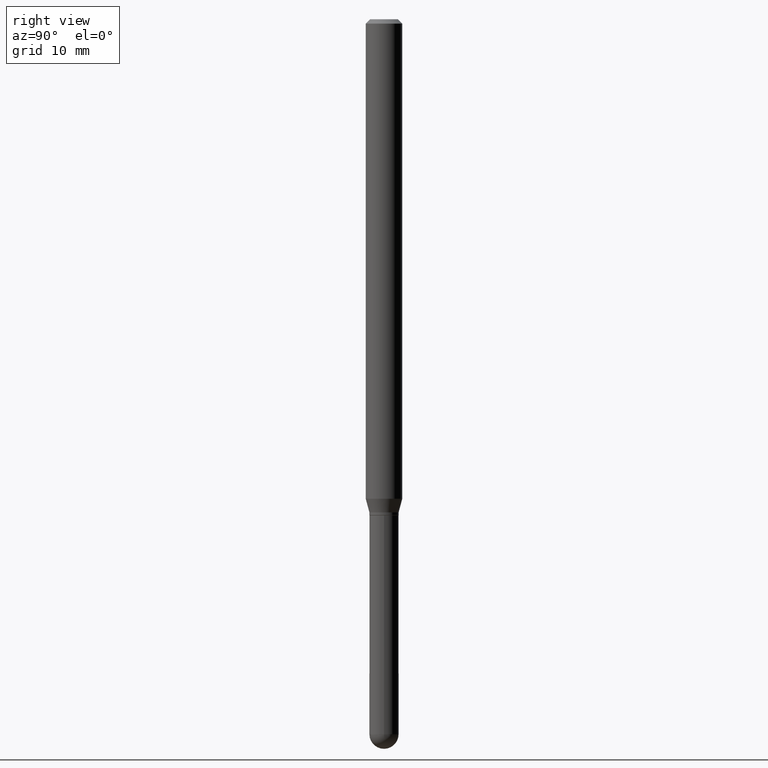
[diagram: clean part render]
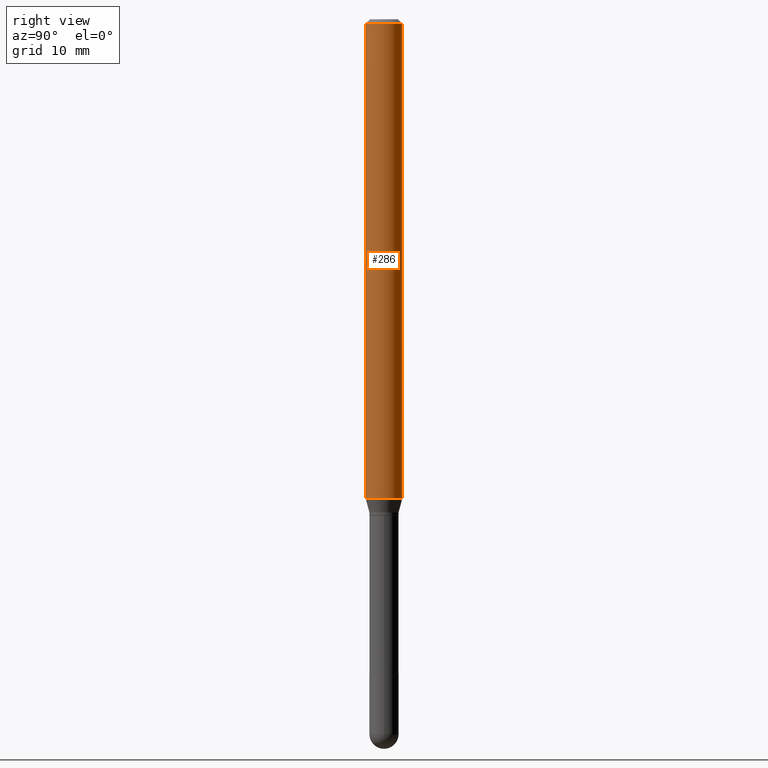
[diagram: same view with one face highlighted and labeled with its STEP entity id]
A machine part, right view. The second image highlights one B-rep face of the part: STEP entity #286.
In plain terms, the highlighted cylindrical surface (edge-blend (fillet) strip) has radius 1.5875 mm, axis along (-0, 0, 1).
Its self-contained STEP definition (entity closure, byte-faithful):
#7 = CARTESIAN_POINT ( 'NONE',  ( 4.440892098501028481E-16, 0.06249999999999429623, -1.643349364905388077 ) ) ;
#8 = VERTEX_POINT ( 'NONE', #206 ) ;
#16 = CARTESIAN_POINT ( 'NONE',  ( -4.364351673553512403E-16, -0.06250000000000570377, -1.643349364905387633 ) ) ;
#25 = ORIENTED_EDGE ( 'NONE', *, *, #375, .T. ) ;
#31 = CARTESIAN_POINT ( 'NONE',  ( -4.364351673553916201E-16, -0.06250000000000000000, 2.182114274504987210E-16 ) ) ;
#41 = AXIS2_PLACEMENT_3D ( 'NONE', #271, #473, #358 ) ;
#42 = CARTESIAN_POINT ( 'NONE',  ( 4.440892098500625669E-16, 0.06250000000000000000, -2.182114274504987210E-16 ) ) ;
#43 = VERTEX_POINT ( 'NONE', #409 ) ;
#49 = VECTOR ( 'NONE', #341, 39.37007874015748143 ) ;
#63 = CYLINDRICAL_SURFACE ( 'NONE', #41, 0.06250000000000000000 ) ;
#67 = EDGE_CURVE ( 'NONE', #43, #8, #260, .T. ) ;
#69 = DIRECTION ( 'NONE',  ( -6.982962677686265922E-15, -1.000000000000000000, 4.370956789862821150E-15 ) ) ;
#95 = EDGE_CURVE ( 'NONE', #498, #43, #500, .T. ) ;
#116 = LINE ( 'NONE', #42, #416 ) ;
#134 = ORIENTED_EDGE ( 'NONE', *, *, #195, .T. ) ;
#152 = AXIS2_PLACEMENT_3D ( 'NONE', #300, #223, #69 ) ;
#188 = EDGE_LOOP ( 'NONE', ( #134, #25, #317, #433 ) ) ;
#195 = EDGE_CURVE ( 'NONE', #498, #310, #382, .T. ) ;
#206 = CARTESIAN_POINT ( 'NONE',  ( 4.440892098501030453E-16, 0.06249999999999995143, -0.01500000000000054588 ) ) ;
#223 = DIRECTION ( 'NONE',  ( -2.445537588112749651E-29, 3.491382839207979536E-15, 1.000000000000000000 ) ) ;
#259 = FACE_OUTER_BOUND ( 'NONE', #188, .T. ) ;
#260 = CIRCLE ( 'NONE', #354, 0.06250000000000000000 ) ;
#271 = CARTESIAN_POINT ( 'NONE',  ( 0.000000000000000000, 0.000000000000000000, 0.000000000000000000 ) ) ;
#286 = ADVANCED_FACE ( 'NONE', ( #259 ), #63, .T. ) ;
#300 = CARTESIAN_POINT ( 'NONE',  ( 4.018872642277341407E-29, -5.737561771454002160E-15, -1.643349364905387855 ) ) ;
#309 = DIRECTION ( 'NONE',  ( -2.445537588112749651E-29, 3.491382839207979536E-15, 1.000000000000000000 ) ) ;
#310 = VERTEX_POINT ( 'NONE', #7 ) ;
#317 = ORIENTED_EDGE ( 'NONE', *, *, #67, .F. ) ;
#333 = DIRECTION ( 'NONE',  ( -6.982962677686265922E-15, -1.000000000000000000, 3.483106191921935554E-15 ) ) ;
#337 = CARTESIAN_POINT ( 'NONE',  ( 3.668306382169205051E-31, -5.237074258812084429E-17, -0.01500000000000032904 ) ) ;
#341 = DIRECTION ( 'NONE',  ( -2.445537588112749651E-29, 3.491382839207979536E-15, 1.000000000000000000 ) ) ;
#354 = AXIS2_PLACEMENT_3D ( 'NONE', #337, #387, #333 ) ;
#358 = DIRECTION ( 'NONE',  ( -6.982962677686265922E-15, -1.000000000000000000, 3.491382839207979536E-15 ) ) ;
#375 = EDGE_CURVE ( 'NONE', #310, #8, #116, .T. ) ;
#382 = CIRCLE ( 'NONE', #152, 0.06250000000000000000 ) ;
#387 = DIRECTION ( 'NONE',  ( -2.445537588112749651E-29, 3.491382839207979536E-15, 1.000000000000000000 ) ) ;
#409 = CARTESIAN_POINT ( 'NONE',  ( -4.364351673553912750E-16, -0.06250000000000005551, -0.01500000000000011047 ) ) ;
#416 = VECTOR ( 'NONE', #309, 39.37007874015748143 ) ;
#433 = ORIENTED_EDGE ( 'NONE', *, *, #95, .F. ) ;
#473 = DIRECTION ( 'NONE',  ( -2.445537588112749651E-29, 3.491382839207979536E-15, 1.000000000000000000 ) ) ;
#498 = VERTEX_POINT ( 'NONE', #16 ) ;
#500 = LINE ( 'NONE', #31, #49 ) ;